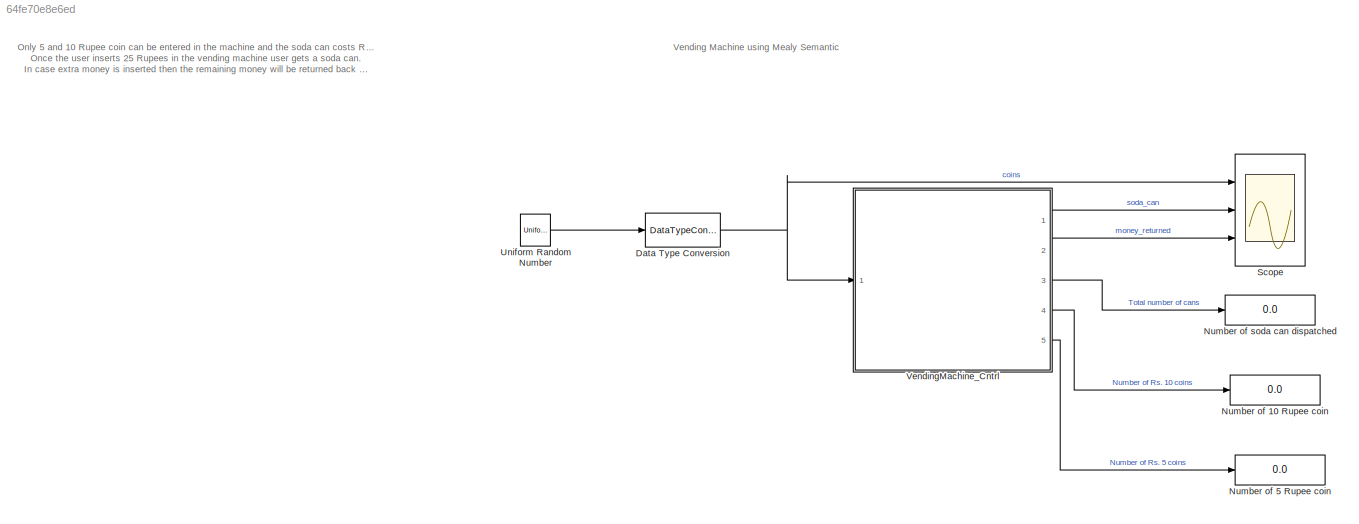
MODEL slx_64fe70e8e6ed
KIND model
CONFIG AbsTol = auto
CONFIG EnableMultiTasking = off
CONFIG FixedStep = auto
CONFIG MaxStep = auto
CONFIG MinStep = auto
CONFIG RelTol = 1e-3
CONFIG SampleTimeConstraint = Unconstrained
CONFIG SolverName = VariableStepAuto
CONFIG StartTime = 0.0
CONFIG StopTime = 60
BLOCK [DataTypeConversion] Data Type Conversion
  OutDataTypeStr = int8
  RndMeth = Nearest
BLOCK [Display] Number of 10 Rupee coin
  Decimation = 1
  Ports = [1]
BLOCK [Display] Number of 5 Rupee coin
  Decimation = 1
  Ports = [1]
BLOCK [Display] Number of soda can dispatched
  Decimation = 1
  Ports = [1]
BLOCK [Scope] Scope
  Floating = off
  NumInputPorts = 3
  Ports = [3]
  ScopeSpecificationString = Simulink.scopes.TimeScopeBlockCfg('CurrentConfiguration', extmgr.ConfigurationSet(extmgr.Configuration('Core','General UI',true),extmgr.Configuration('Core','Source UI',true),extmgr.Configuration('Sources','WiredSimulink',true),extmgr.Configuration('Visuals','Time Domain',true,'SerializedDisplays',{struct('MinYLimReal','-0.25','MaxYLimReal','2.25','YLabelReal','','MinYLimMag','0.00000','MaxYLimMag...<+2696ch>
BLOCK [UniformRandomNumber] Uniform Random Number
  Maximum = 2
  Minimum = 0
  SampleTime = 1
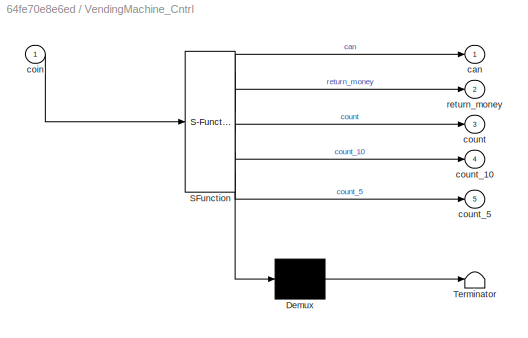
BLOCK [SubSystem] VendingMachine_Cntrl
  ErrorFcn = Stateflow.Translate.translate
  PermitHierarchicalResolution = ExplicitOnly
  Ports = [1, 5]
  RequestExecContextInheritance = off
  SFBlockType = Chart
  TreatAsAtomicUnit = on
BLOCK [Demux] VendingMachine_Cntrl/ Demux 
  Outputs = 1
  Ports = [1, 1]
BLOCK [S-Function] VendingMachine_Cntrl/ SFunction 
  EnableBusSupport = on
  FunctionName = sf_sfun
  PortCounts = [1 6]
  Ports = [1, 6]
  SFcnIsStateOwnerBlock = off
  SFunctionDeploymentMode = off
  Tag = Stateflow S-Function 3
BLOCK [Terminator] VendingMachine_Cntrl/ Terminator 
BLOCK [Outport] VendingMachine_Cntrl/can
BLOCK [Inport] VendingMachine_Cntrl/coin
BLOCK [Outport] VendingMachine_Cntrl/count
  Port = 3
BLOCK [Outport] VendingMachine_Cntrl/count_10
  Port = 4
BLOCK [Outport] VendingMachine_Cntrl/count_5
  Port = 5
BLOCK [Outport] VendingMachine_Cntrl/return_money
  Port = 2
ANNOTATION (root): Only 5 and 10 Rupee coin can be entered in the machine and the soda can costs Rupees 25. Once the user inserts 25 Rupees in the vending machine user gets a soda can. In case extra money is inserted then the remaining money will be returned back to the user.
ANNOTATION (root): Vending Machine using Mealy Semantic
NET Data Type Conversion:1 -> Scope:1, VendingMachine_Cntrl:1
LINE Uniform Random Number:1 -> Data Type Conversion:1
LINE VendingMachine_Cntrl:1 -> Scope:2
LINE VendingMachine_Cntrl:2 -> Scope:3
LINE VendingMachine_Cntrl:3 -> Number of soda can dispatched:1
LINE VendingMachine_Cntrl:4 -> Number of 10 Rupee coin:1
LINE VendingMachine_Cntrl:5 -> Number of 5 Rupee coin:1
note: NET lines group one-source signal fan-out (src -> all destinations, sorted); 1:1 wires keep LINE
CHART VendingMachine_Cntrl states=8 transitions=13
  STATE_LABEL '<!DOCTYPE HTML PUBLIC "-//W3C//DTD HTML 4.0//EN" "http://www.w3.org/TR/REC-html40/strict.dtd">\n<html><head><meta name="qrichtext" content="1" /><style type="text/css">\np, li { white-space: pre-wrap; }\n</style></head><body align="left" style=" font-family:\'Helvetica\'; font-size:12px; font-weight:400; font-style:normal;">\n<p align="left" style=" margin-top:0px; margin-bottom:0px; margin-left:0px; ma...<+352ch>'
  STATE_LABEL 'S0\nentry:\nreturn_money = 0;'
  STATE_LABEL 'S10\n'
  STATE_LABEL 'S5\n'
  STATE_LABEL 'S20\n'
  STATE_LABEL 'S15\n'
  STATE_LABEL 'S30\nentry:\nreturn_money =5;\nexit:\ncount = count +1;\ncount_5 = count_5 -1;'
  STATE_LABEL 'S25\nexit:\ncount = count + 1;'
CHART  states=0 transitions=0
